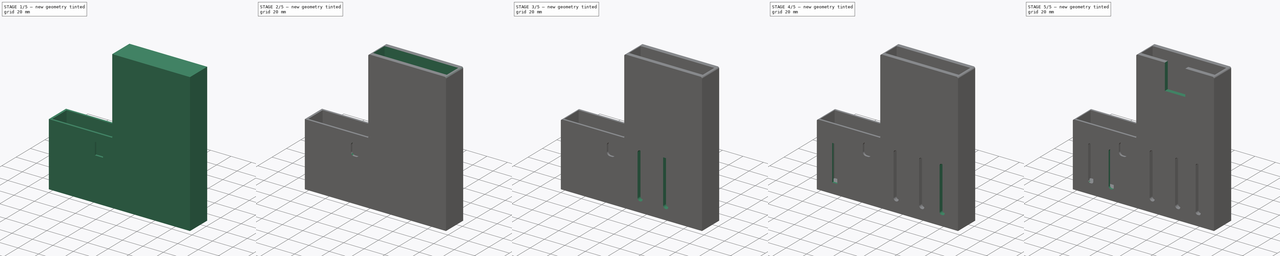
[diagram: build sequence overview — one tinted view per stage of 5, left to right]
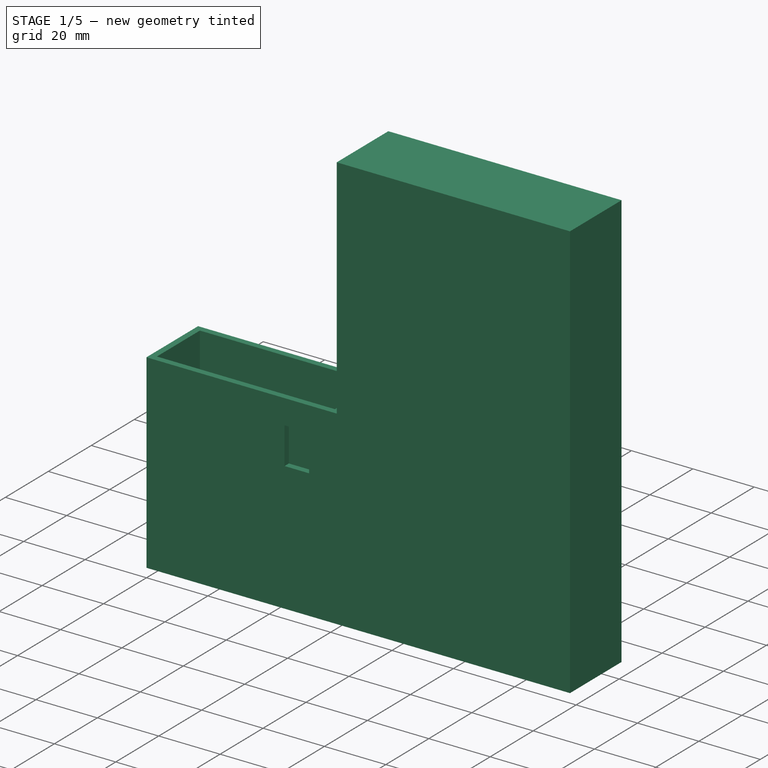
[diagram: stage 1 of 5 — iso view after this stage's code; geometry added in this stage tinted green]
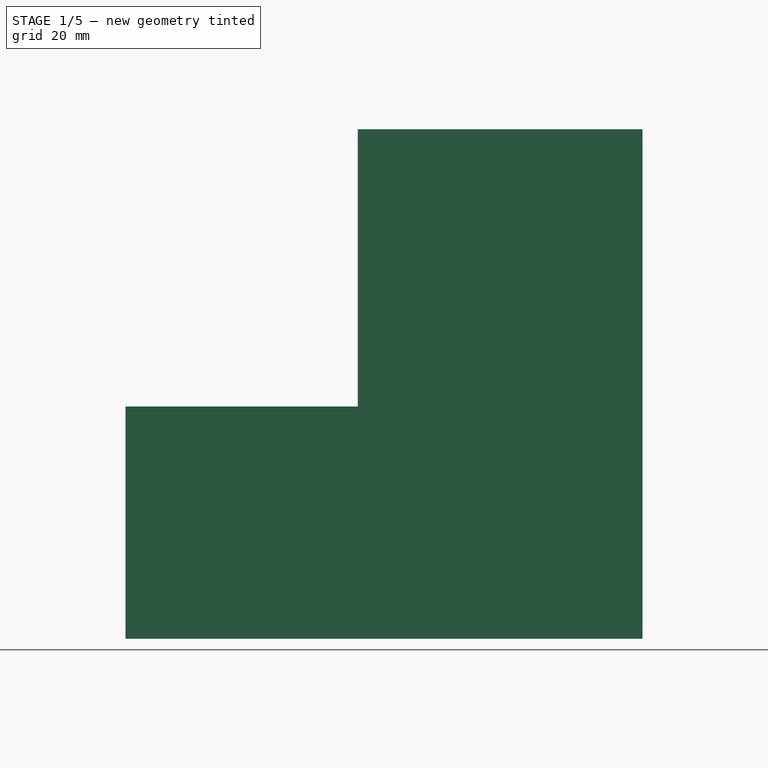
[diagram: stage 1 of 5 — front view after this stage's code; geometry added in this stage tinted green]
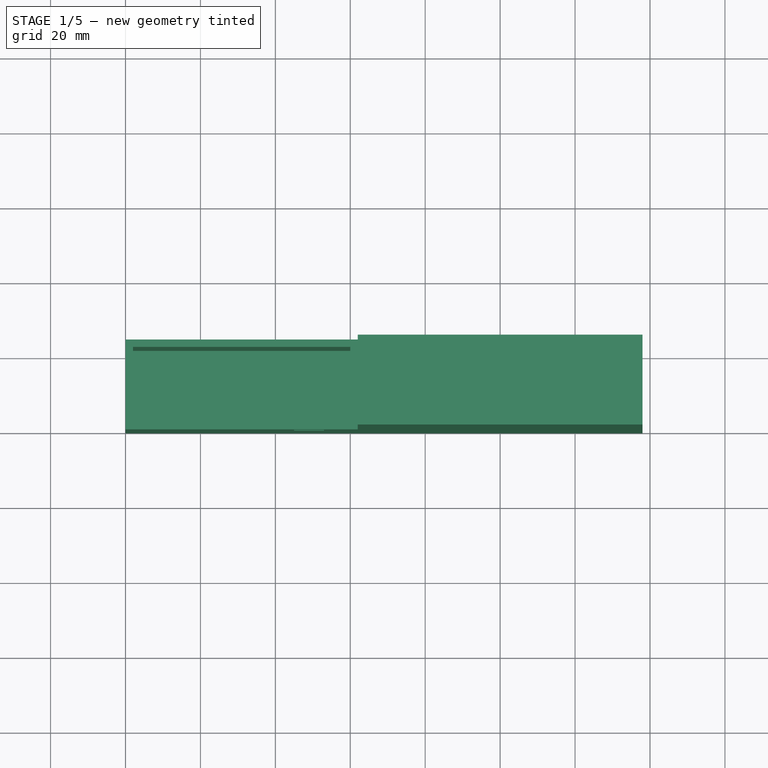
[diagram: stage 1 of 5 — top view after this stage's code; geometry added in this stage tinted green]
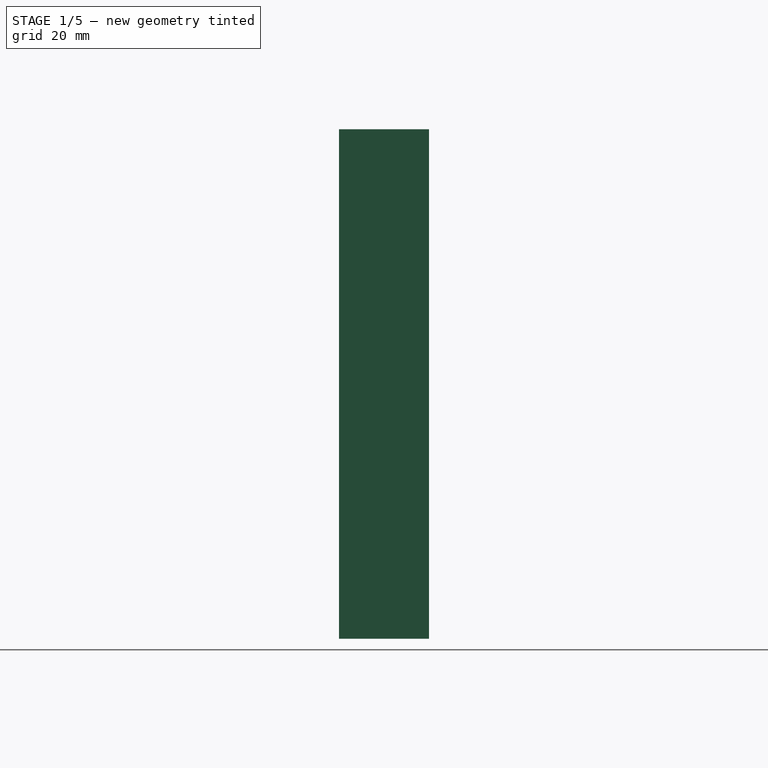
[diagram: stage 1 of 5 — right view after this stage's code; geometry added in this stage tinted green]
FCSTD DOCUMENT  (FreeCAD 0.19R24267 +148 (Git))
Label: V5
License: All rights reserved
LicenseURL: http://en.wikipedia.org/wiki/All_rights_reserved
objects: PartDesign::Fillet×20, Sketcher::SketchObject×10, PartDesign::Pocket×9, PartDesign::Pad×5, PartDesign::Body×1
note: 79 computed .brp shape members not serialized (recipe doc carries the construction recipe); baked Part::Feature solids carry a one-line shape summary decoded from their .brp

FEATURE [Sketcher::SketchObject] Sketch
  FullyConstrained = true
  MapMode = 5
  Support = -> [XY_Plane]
  sketch-geometry (4):
    g0: LineSegment StartX=0 StartY=0 StartZ=0 EndX=62 EndY=0 EndZ=0
    g1: LineSegment StartX=62 StartY=0 StartZ=0 EndX=62 EndY=24 EndZ=0
    g2: LineSegment StartX=62 StartY=24 StartZ=0 EndX=0 EndY=24 EndZ=0
    g3: LineSegment StartX=0 StartY=24 StartZ=0 EndX=0 EndY=0 EndZ=0
  constraints (11):
    c: Coincident(g0,g1)
    c: Coincident(g1,g2)
    c: Coincident(g2,g3)
    c: Coincident(g3,g0)
    c: Horizontal(g0)
    c: Horizontal(g2)
    c: Vertical(g1)
    c: Vertical(g3)
    c: Coincident(g0,g-1)
    c: Distance(g1) = 24
    c: Distance(g2) = 62
FEATURE [PartDesign::Pad] Pad
  Direction = (1,1,1)
  Length = 62
  Length2 = 100
  Profile = -> Sketch
  Type = 0
FEATURE [Sketcher::SketchObject] Sketch001
  FullyConstrained = true
  MapMode = 5
  Placement = pos=(0,0,62) rot=(0,0,1;0rad)
  Support = -> [Pad]
  sketch-geometry (4):
    g0: LineSegment StartX=2 StartY=2 StartZ=0 EndX=60 EndY=2 EndZ=0
    g1: LineSegment StartX=60 StartY=2 StartZ=0 EndX=60 EndY=22 EndZ=0
    g2: LineSegment StartX=60 StartY=22 StartZ=0 EndX=2 EndY=22 EndZ=0
    g3: LineSegment StartX=2 StartY=22 StartZ=0 EndX=2 EndY=2 EndZ=0
  constraints (12):
    c: Coincident(g0,g1)
    c: Coincident(g1,g2)
    c: Coincident(g2,g3)
    c: Coincident(g3,g0)
    c: Horizontal(g0)
    c: Horizontal(g2)
    c: Vertical(g1)
    c: Vertical(g3)
    c: Distance(g2) = 58
    c: Distance(g1) = 20
    c: Distance(g-1,g3) = 2
    c: Distance(g-1,g0) = 2
FEATURE [PartDesign::Pocket] Pocket
  BaseFeature = -> Pad
  Length = 60
  Length2 = 100
  Profile = -> Sketch001
  Type = 0
FEATURE [Sketcher::SketchObject] Sketch002
  FullyConstrained = true
  MapMode = 5
  Placement = pos=(0,0,0) rot=(1,0,0;1.5708rad)
  Support = -> [Pocket]
  sketch-geometry (4):
    g0: LineSegment StartX=45 StartY=54 StartZ=0 EndX=53 EndY=54 EndZ=0
    g1: LineSegment StartX=53 StartY=54 StartZ=0 EndX=53 EndY=42 EndZ=0
    g2: LineSegment StartX=53 StartY=42 StartZ=0 EndX=45 EndY=42 EndZ=0
    g3: LineSegment StartX=45 StartY=42 StartZ=0 EndX=45 EndY=54 EndZ=0
  constraints (12):
    c: Coincident(g0,g1)
    c: Coincident(g1,g2)
    c: Coincident(g2,g3)
    c: Coincident(g3,g0)
    c: Horizontal(g0)
    c: Horizontal(g2)
    c: Vertical(g1)
    c: Vertical(g3)
    c: Distance(g1) = 12
    c: Distance(g0) = 8
    c: DistanceX(g-1,g2) = 45
    c: DistanceY(g-1,g2) = 42
FEATURE [PartDesign::Pocket] Pocket001
  BaseFeature = -> Pocket
  Length = 2
  Length2 = 100
  Profile = -> Sketch002
  Type = 0
FEATURE [PartDesign::Pad] Pad001
  BaseFeature = -> Pocket001
  Direction = (1,1,1)
  Length = 74
  Length2 = 100
  Profile = -> Pocket001 [Face5]
  Type = 0
FEATURE [PartDesign::Pad] Pad002
  BaseFeature = -> Pad001
  Direction = (1,1,1)
  Length = 74
  Length2 = 100
  Profile = -> Pad001 [Face12]
  Type = 0
FEATURE [Sketcher::SketchObject] Sketch003
  FullyConstrained = true
  MapMode = 5
  Placement = pos=(0,0,136) rot=(0,0,1;0rad)
  Support = -> [Pad002]
  sketch-geometry (4):
    g0: LineSegment StartX=64 StartY=20 StartZ=0 EndX=136 EndY=20 EndZ=0
    g1: LineSegment StartX=136 StartY=20 StartZ=0 EndX=136 EndY=4 EndZ=0
    g2: LineSegment StartX=136 StartY=4 StartZ=0 EndX=64 EndY=4 EndZ=0
    g3: LineSegment StartX=64 StartY=4 StartZ=0 EndX=64 EndY=20 EndZ=0
  constraints (12):
    c: Coincident(g0,g1)
    c: Coincident(g1,g2)
    c: Coincident(g2,g3)
    c: Coincident(g3,g0)
    c: Horizontal(g0)
    c: Horizontal(g2)
    c: Vertical(g1)
    c: Vertical(g3)
    c: DistanceX(g0,g0) = 72
    c: DistanceY(g3,g3) = 16
    c: DistanceY(g-1,g2) = 4
    c: DistanceX(g-1,g2) = 64
FEATURE [PartDesign::Pad] Pad003
  BaseFeature = -> Pad002
  Direction = (1,1,1)
  Length = 2
  Length2 = 100
  Profile = -> Pad002 [Face18]
  Type = 0
FEATURE [PartDesign::Pad] Pad004
  BaseFeature = -> Pad003
  Direction = (1,1,1)
  Length = 2
  Length2 = 100
  Profile = -> Pad003 [Face24]
  Type = 0
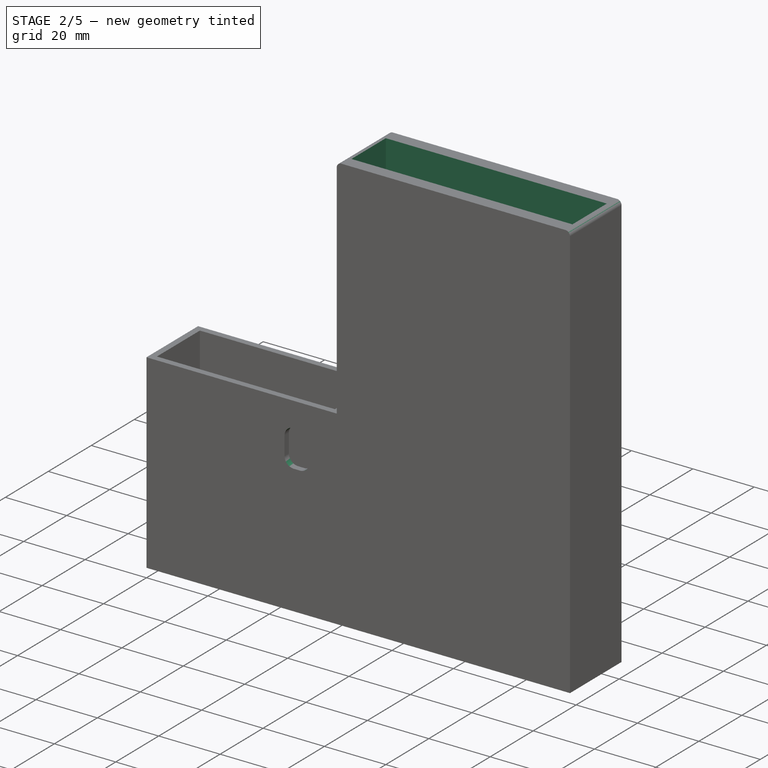
[diagram: stage 2 of 5 — iso view after this stage's code; geometry added in this stage tinted green]
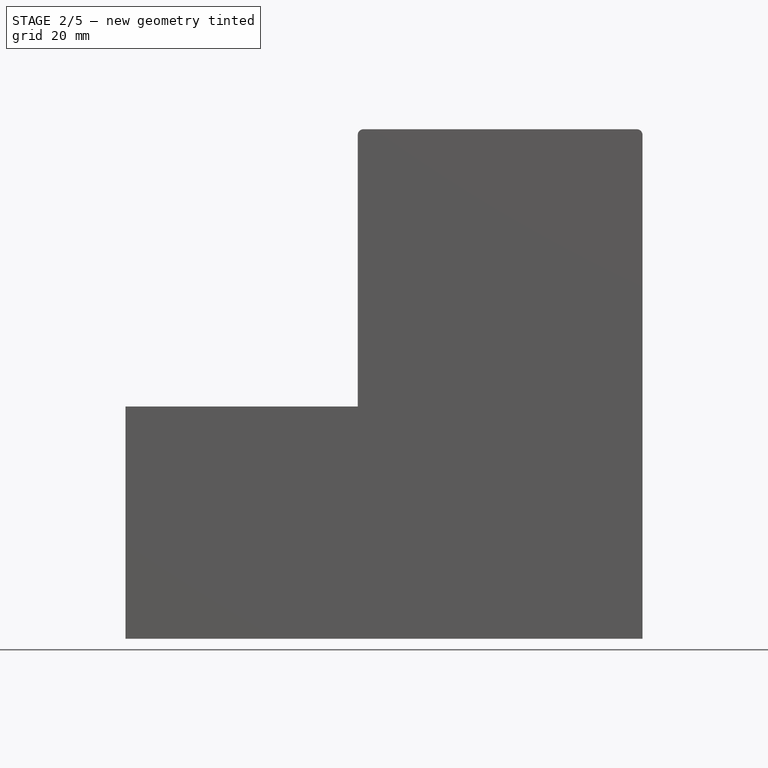
[diagram: stage 2 of 5 — front view after this stage's code; geometry added in this stage tinted green]
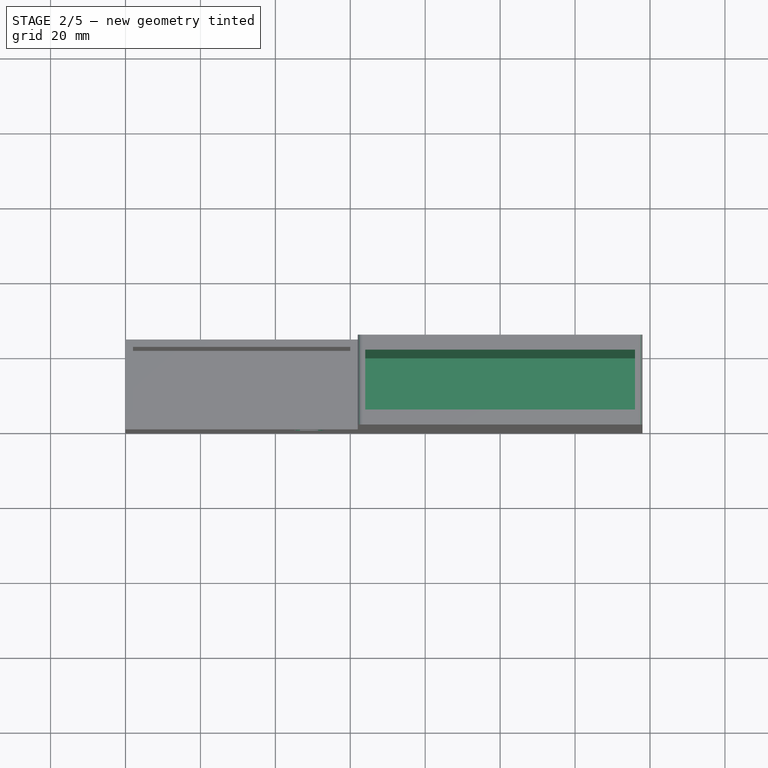
[diagram: stage 2 of 5 — top view after this stage's code; geometry added in this stage tinted green]
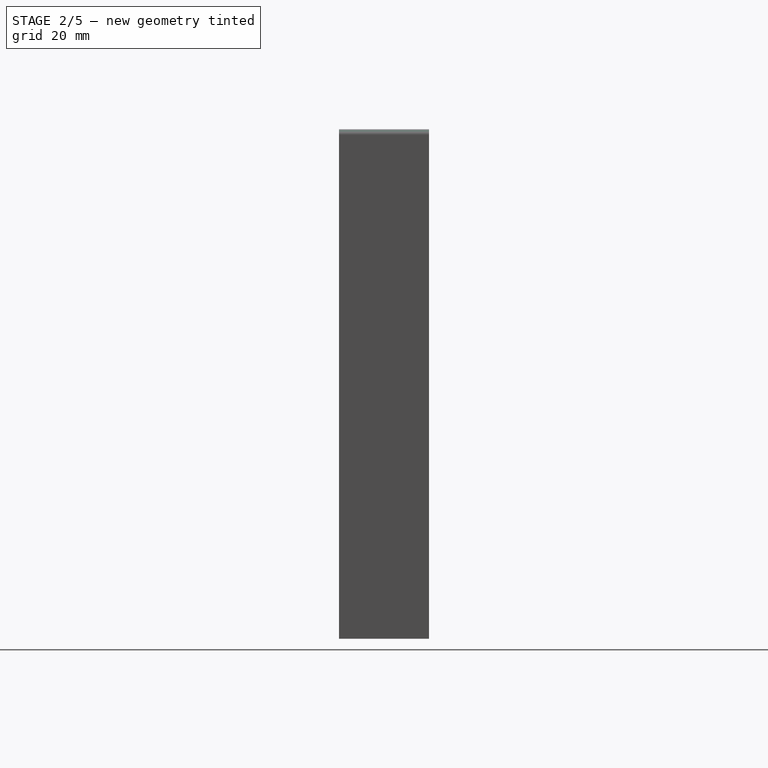
[diagram: stage 2 of 5 — right view after this stage's code; geometry added in this stage tinted green]
FEATURE [PartDesign::Pocket] Pocket002
  BaseFeature = -> Pad004
  Length = 135
  Length2 = 100
  Profile = -> Sketch003
  Type = 0
FEATURE [PartDesign::Fillet] Fillet
  Base = -> Pocket002 [Edge28]
  BaseFeature = -> Pocket002
  Radius = 3
  SupportTransform = false
FEATURE [PartDesign::Fillet] Fillet001
  Base = -> Fillet [Edge11]
  BaseFeature = -> Fillet
  Radius = 3
  SupportTransform = false
FEATURE [PartDesign::Fillet] Fillet002
  Base = -> Fillet001 [Edge18]
  BaseFeature = -> Fillet001
  Radius = 3
  SupportTransform = false
FEATURE [PartDesign::Fillet] Fillet003
  Base = -> Fillet002 [Edge19]
  BaseFeature = -> Fillet002
  Radius = 3
  SupportTransform = false
FEATURE [PartDesign::Fillet] Fillet004
  Base = -> Fillet003 [Edge51]
  BaseFeature = -> Fillet003
  Radius = 1.5
  SupportTransform = false
FEATURE [PartDesign::Fillet] Fillet005
  Base = -> Fillet004 [Edge72]
  BaseFeature = -> Fillet004
  Radius = 1.5
  SupportTransform = false
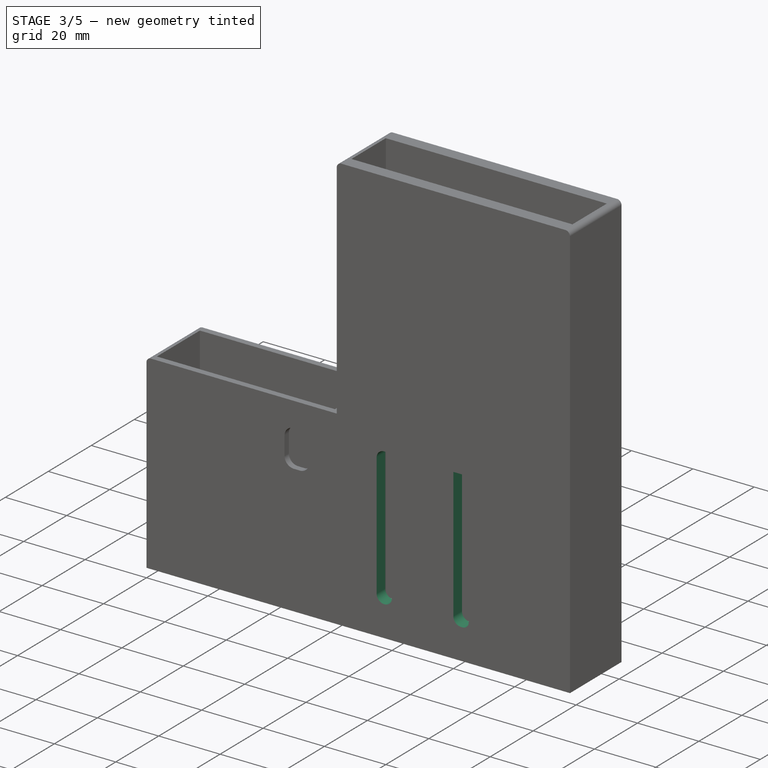
[diagram: stage 3 of 5 — iso view after this stage's code; geometry added in this stage tinted green]
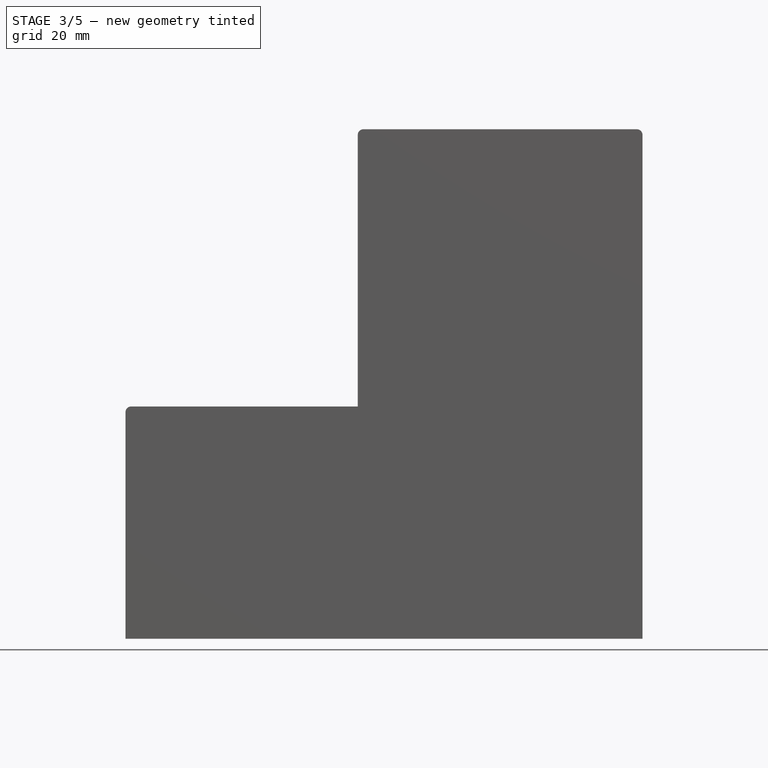
[diagram: stage 3 of 5 — front view after this stage's code; geometry added in this stage tinted green]
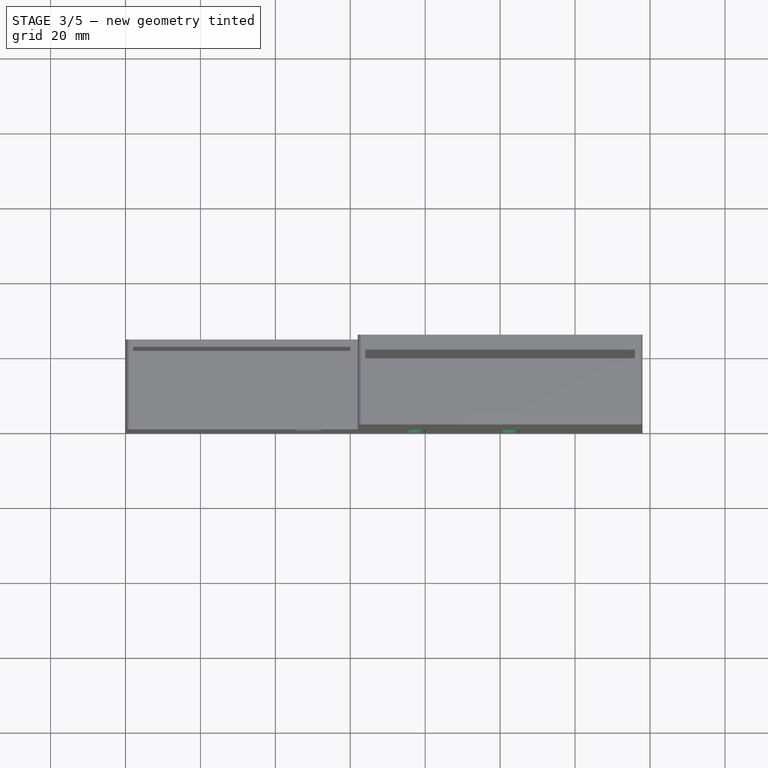
[diagram: stage 3 of 5 — top view after this stage's code; geometry added in this stage tinted green]
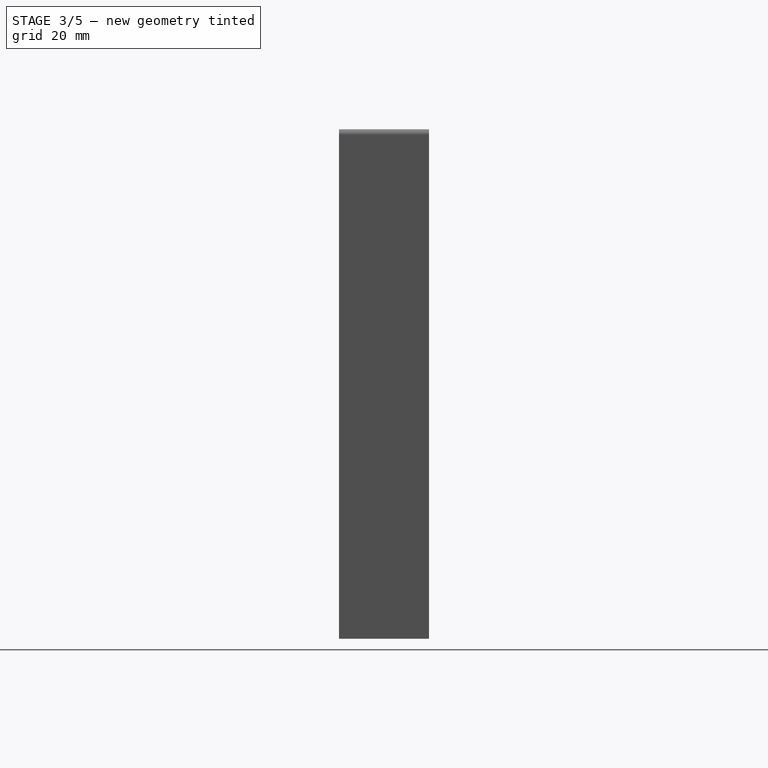
[diagram: stage 3 of 5 — right view after this stage's code; geometry added in this stage tinted green]
FEATURE [PartDesign::Fillet] Fillet006
  Base = -> Fillet005 [Edge50]
  BaseFeature = -> Fillet005
  Radius = 1.5
  SupportTransform = false
FEATURE [Sketcher::SketchObject] Sketch004
  FullyConstrained = true
  MapMode = 5
  Placement = pos=(0,0,0) rot=(1,0,0;1.5708rad)
  Support = -> [XZ_Plane]
  sketch-geometry (4):
    g0: LineSegment StartX=75 StartY=10 StartZ=0 EndX=80 EndY=10 EndZ=0
    g1: LineSegment StartX=80 StartY=10 StartZ=0 EndX=80 EndY=55 EndZ=0
    g2: LineSegment StartX=80 StartY=55 StartZ=0 EndX=75 EndY=55 EndZ=0
    g3: LineSegment StartX=75 StartY=55 StartZ=0 EndX=75 EndY=10 EndZ=0
  constraints (12):
    c: Coincident(g0,g1)
    c: Coincident(g1,g2)
    c: Coincident(g2,g3)
    c: Coincident(g3,g0)
    c: Horizontal(g0)
    c: Horizontal(g2)
    c: Vertical(g1)
    c: Vertical(g3)
    c: Distance(g1) = 45
    c: Distance(g2) = 5
    c: Distance(g-1,g0) = 10
    c: Distance(g-1,g3) = 75
FEATURE [PartDesign::Pocket] Pocket003
  BaseFeature = -> Fillet006
  Length = 4
  Length2 = 100
  Profile = -> Sketch004
  Type = 0
FEATURE [Sketcher::SketchObject] Sketch005
  FullyConstrained = true
  MapMode = 5
  Placement = pos=(0,0,0) rot=(1,0,0;1.5708rad)
  Support = -> [XZ_Plane]
  sketch-geometry (4):
    g0: LineSegment StartX=100 StartY=10 StartZ=0 EndX=105 EndY=10 EndZ=0
    g1: LineSegment StartX=105 StartY=10 StartZ=0 EndX=105 EndY=55 EndZ=0
    g2: LineSegment StartX=105 StartY=55 StartZ=0 EndX=100 EndY=55 EndZ=0
    g3: LineSegment StartX=100 StartY=55 StartZ=0 EndX=100 EndY=10 EndZ=0
  constraints (12):
    c: Coincident(g0,g1)
    c: Coincident(g1,g2)
    c: Coincident(g2,g3)
    c: Coincident(g3,g0)
    c: Horizontal(g0)
    c: Horizontal(g2)
    c: Vertical(g1)
    c: Vertical(g3)
    c: Distance(g1) = 45
    c: Distance(g2) = 5
    c: Distance(g-1,g0) = 10
    c: Distance(g-1,g3) = 100
FEATURE [PartDesign::Pocket] Pocket004
  BaseFeature = -> Pocket003
  Length = 4
  Length2 = 100
  Profile = -> Sketch005
  Type = 0
FEATURE [PartDesign::Fillet] Fillet008
  Base = -> Pocket004 [Edge39]
  BaseFeature = -> Pocket004
  Radius = 2.5
  SupportTransform = false
FEATURE [PartDesign::Fillet] Fillet009
  Base = -> Fillet008 [Edge19]
  BaseFeature = -> Fillet008
  Radius = 2.5
  SupportTransform = false
FEATURE [PartDesign::Fillet] Fillet010
  Base = -> Fillet009 [Edge26]
  BaseFeature = -> Fillet009
  Radius = 2.5
  SupportTransform = false
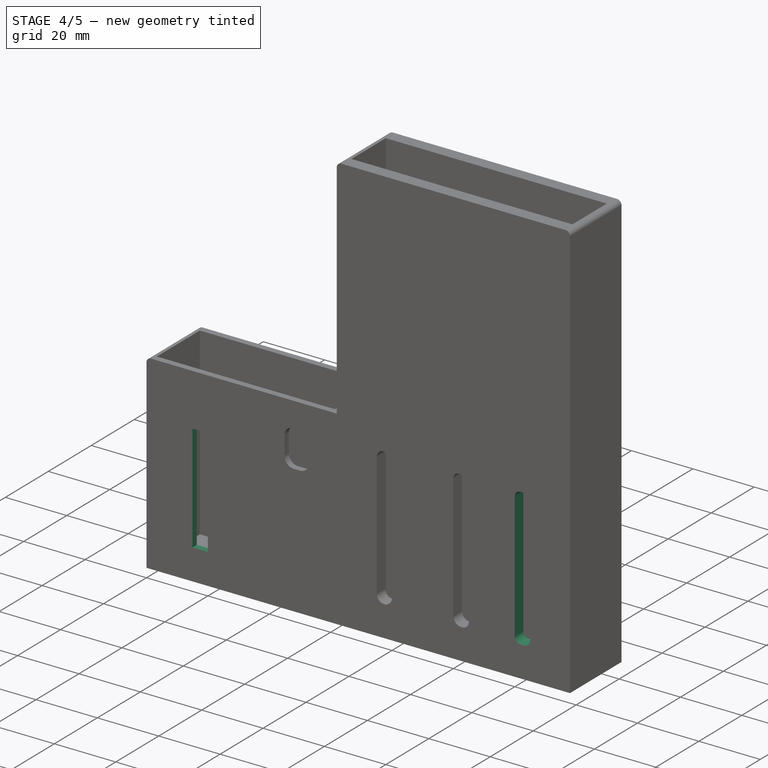
[diagram: stage 4 of 5 — iso view after this stage's code; geometry added in this stage tinted green]
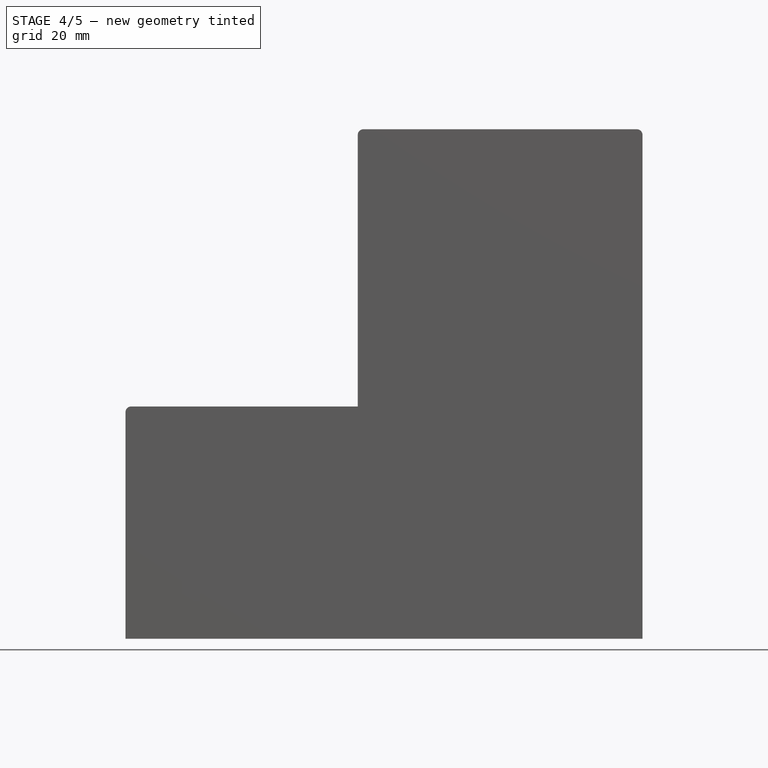
[diagram: stage 4 of 5 — front view after this stage's code; geometry added in this stage tinted green]
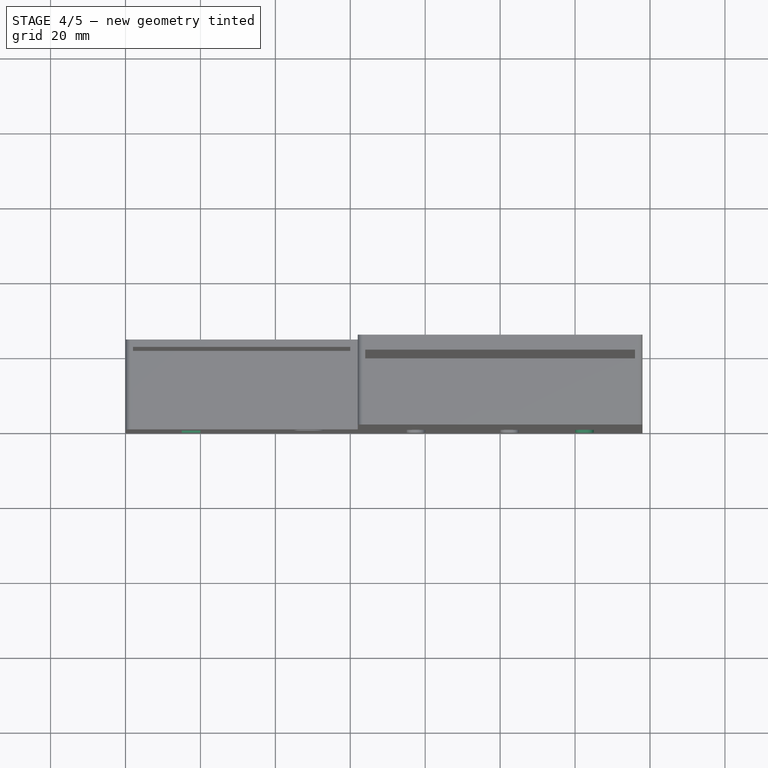
[diagram: stage 4 of 5 — top view after this stage's code; geometry added in this stage tinted green]
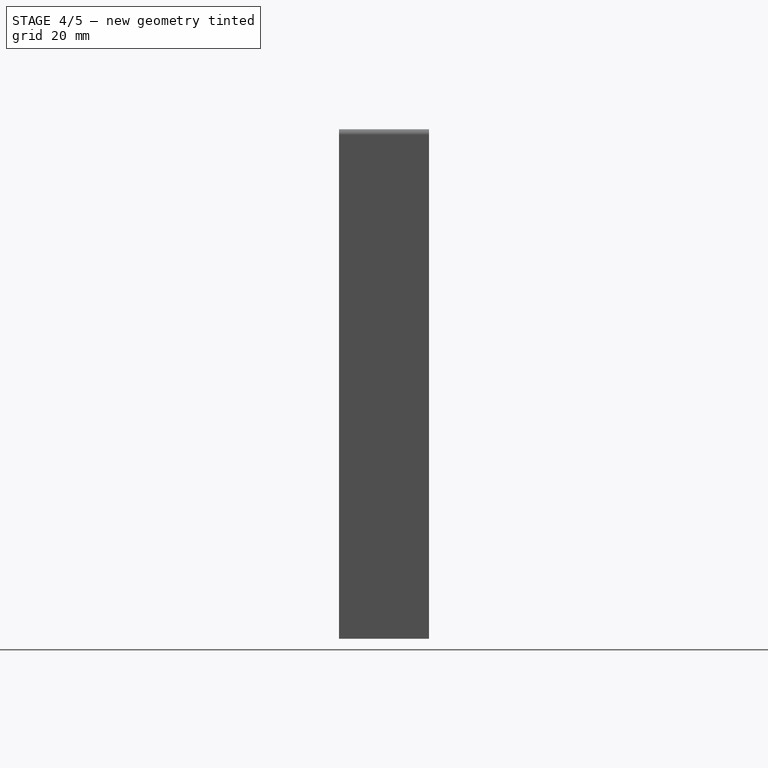
[diagram: stage 4 of 5 — right view after this stage's code; geometry added in this stage tinted green]
FEATURE [PartDesign::Fillet] Fillet011
  Base = -> Fillet010 [Edge27]
  BaseFeature = -> Fillet010
  Radius = 2
  SupportTransform = false
FEATURE [Sketcher::SketchObject] Sketch006
  FullyConstrained = true
  MapMode = 5
  Placement = pos=(0,0,0) rot=(1,0,0;1.5708rad)
  Support = -> [XZ_Plane]
  sketch-geometry (4):
    g0: LineSegment StartX=120 StartY=10 StartZ=0 EndX=125 EndY=10 EndZ=0
    g1: LineSegment StartX=125 StartY=10 StartZ=0 EndX=125 EndY=55 EndZ=0
    g2: LineSegment StartX=125 StartY=55 StartZ=0 EndX=120 EndY=55 EndZ=0
    g3: LineSegment StartX=120 StartY=55 StartZ=0 EndX=120 EndY=10 EndZ=0
  constraints (12):
    c: Coincident(g0,g1)
    c: Coincident(g1,g2)
    c: Coincident(g2,g3)
    c: Coincident(g3,g0)
    c: Horizontal(g0)
    c: Horizontal(g2)
    c: Vertical(g1)
    c: Vertical(g3)
    c: Distance(g1) = 45
    c: Distance(g0) = 5
    c: Distance(g-1,g0) = 10
    c: Distance(g-1,g3) = 120
FEATURE [PartDesign::Pocket] Pocket005
  BaseFeature = -> Fillet011
  Length = 4
  Length2 = 100
  Profile = -> Sketch006
  Type = 0
FEATURE [PartDesign::Fillet] Fillet012
  Base = -> Pocket005 [Edge47]
  BaseFeature = -> Pocket005
  Radius = 2
  SupportTransform = false
FEATURE [PartDesign::Fillet] Fillet013
  Base = -> Fillet012 [Edge27]
  BaseFeature = -> Fillet012
  Radius = 2
  SupportTransform = false
FEATURE [PartDesign::Fillet] Fillet014
  Base = -> Fillet013 [Edge36]
  BaseFeature = -> Fillet013
  Radius = 2
  SupportTransform = false
FEATURE [PartDesign::Fillet] Fillet015
  Base = -> Fillet014 [Edge35]
  BaseFeature = -> Fillet014
  Radius = 2
  SupportTransform = false
FEATURE [Sketcher::SketchObject] Sketch007
  FullyConstrained = true
  MapMode = 5
  Placement = pos=(0,0,0) rot=(1,0,0;1.5708rad)
  Support = -> [XZ_Plane]
  sketch-geometry (4):
    g0: LineSegment StartX=15 StartY=10 StartZ=0 EndX=20 EndY=10 EndZ=0
    g1: LineSegment StartX=20 StartY=10 StartZ=0 EndX=20 EndY=45 EndZ=0
    g2: LineSegment StartX=20 StartY=45 StartZ=0 EndX=15 EndY=45 EndZ=0
    g3: LineSegment StartX=15 StartY=45 StartZ=0 EndX=15 EndY=10 EndZ=0
  constraints (12):
    c: Coincident(g0,g1)
    c: Coincident(g1,g2)
    c: Coincident(g2,g3)
    c: Coincident(g3,g0)
    c: Horizontal(g0)
    c: Horizontal(g2)
    c: Vertical(g1)
    c: Vertical(g3)
    c: Distance(g0) = 5
    c: Distance(g1) = 35
    c: Distance(g-1,g0) = 10
    c: Distance(g-1,g3) = 15
FEATURE [PartDesign::Pocket] Pocket006
  BaseFeature = -> Fillet015
  Length = 2
  Length2 = 100
  Profile = -> Sketch007
  Type = 0
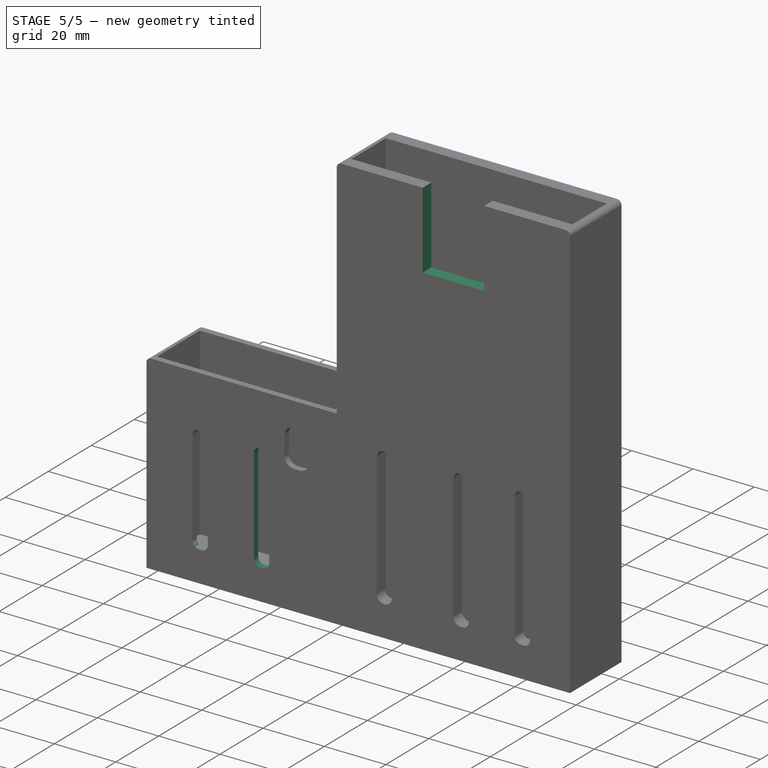
[diagram: stage 5 of 5 — iso view after this stage's code; geometry added in this stage tinted green]
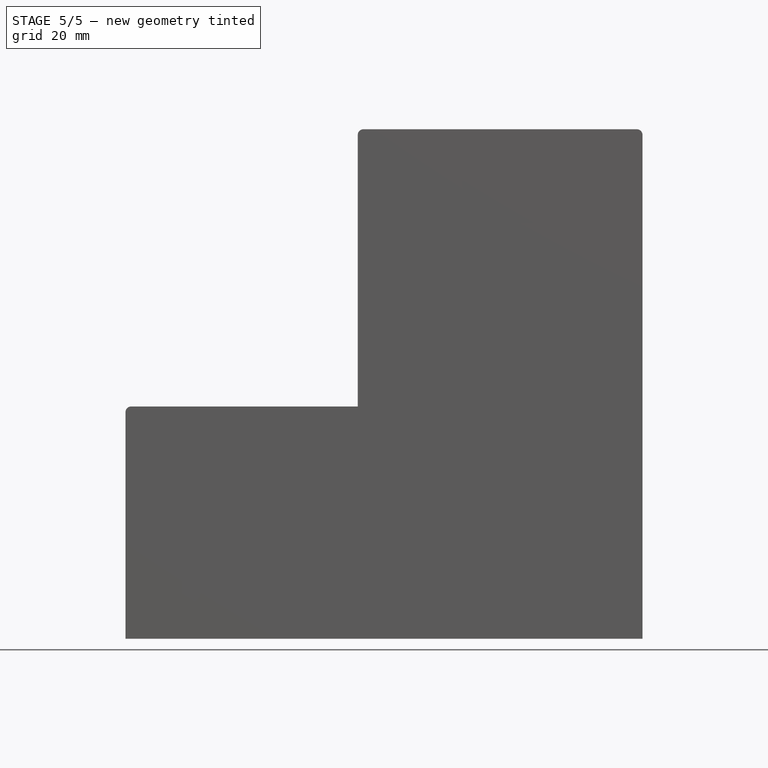
[diagram: stage 5 of 5 — front view after this stage's code; geometry added in this stage tinted green]
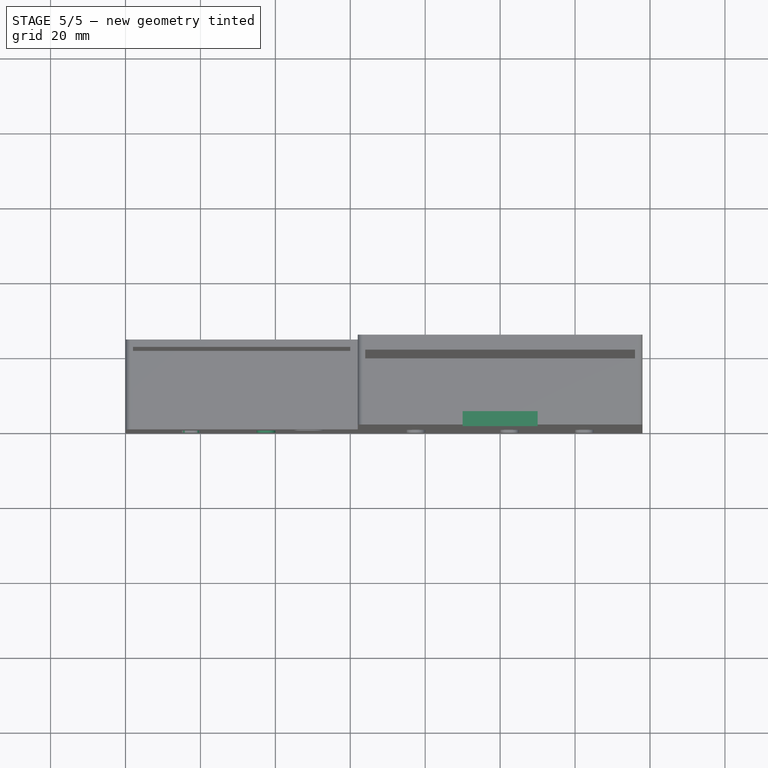
[diagram: stage 5 of 5 — top view after this stage's code; geometry added in this stage tinted green]
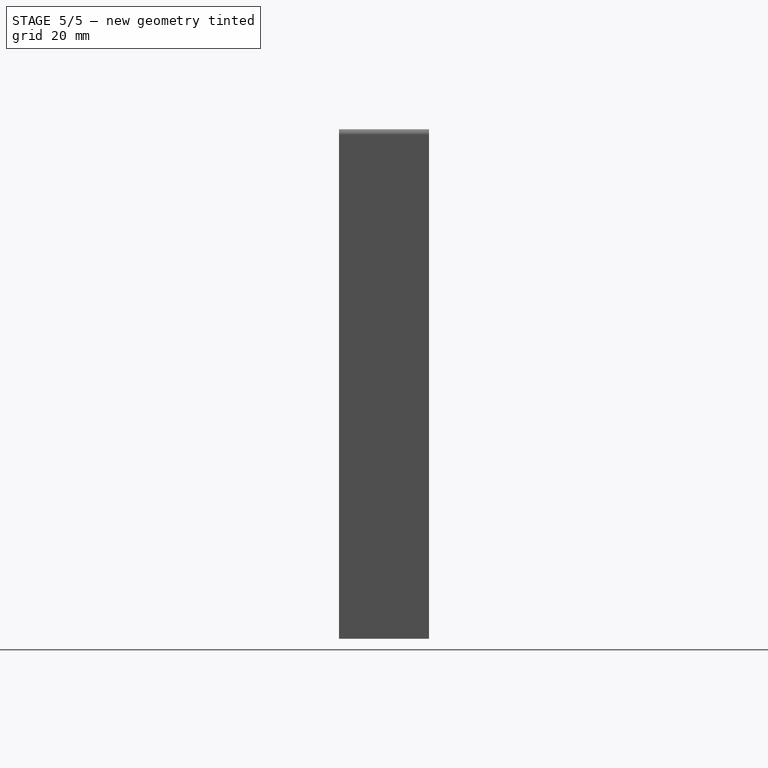
[diagram: stage 5 of 5 — right view after this stage's code; geometry added in this stage tinted green]
FEATURE [PartDesign::Fillet] Fillet016
  Base = -> Pocket006 [Edge146]
  BaseFeature = -> Pocket006
  Radius = 2
  SupportTransform = false
FEATURE [PartDesign::Fillet] Fillet017
  Base = -> Fillet016 [Edge26]
  BaseFeature = -> Fillet016
  Radius = 2
  SupportTransform = false
FEATURE [PartDesign::Fillet] Fillet018
  Base = -> Fillet017 [Edge27]
  BaseFeature = -> Fillet017
  Radius = 2
  SupportTransform = false
FEATURE [PartDesign::Fillet] Fillet019
  Base = -> Fillet018 [Edge28]
  BaseFeature = -> Fillet018
  Radius = 2
  SupportTransform = false
FEATURE [Sketcher::SketchObject] Sketch008
  FullyConstrained = true
  MapMode = 5
  Placement = pos=(0,0,0) rot=(1,0,0;1.5708rad)
  Support = -> [XZ_Plane]
  sketch-geometry (4):
    g0: LineSegment StartX=35 StartY=10 StartZ=0 EndX=40 EndY=10 EndZ=0
    g1: LineSegment StartX=40 StartY=10 StartZ=0 EndX=40 EndY=45 EndZ=0
    g2: LineSegment StartX=40 StartY=45 StartZ=0 EndX=35 EndY=45 EndZ=0
    g3: LineSegment StartX=35 StartY=45 StartZ=0 EndX=35 EndY=10 EndZ=0
  constraints (12):
    c: Coincident(g0,g1)
    c: Coincident(g1,g2)
    c: Coincident(g2,g3)
    c: Coincident(g3,g0)
    c: Horizontal(g0)
    c: Horizontal(g2)
    c: Vertical(g1)
    c: Vertical(g3)
    c: Distance(g1) = 35
    c: Distance(g0) = 5
    c: Distance(g-1,g0) = 10
    c: Distance(g-1,g3) = 35
FEATURE [PartDesign::Pocket] Pocket007
  BaseFeature = -> Fillet019
  Length = 2
  Length2 = 100
  Profile = -> Sketch008
  Type = 0
FEATURE [PartDesign::Fillet] Fillet020
  Base = -> Pocket007 [Edge103,Edge99,Edge101,Edge98]
  BaseFeature = -> Pocket007
  Radius = 2
  SupportTransform = false
FEATURE [Sketcher::SketchObject] Sketch009
  FullyConstrained = true
  MapMode = 5
  Placement = pos=(0,0,0) rot=(1,0,0;1.5708rad)
  Support = -> [XZ_Plane]
  sketch-geometry (4):
    g0: LineSegment StartX=90 StartY=111 StartZ=0 EndX=110 EndY=111 EndZ=0
    g1: LineSegment StartX=110 StartY=111 StartZ=0 EndX=110 EndY=136 EndZ=0
    g2: LineSegment StartX=110 StartY=136 StartZ=0 EndX=90 EndY=136 EndZ=0
    g3: LineSegment StartX=90 StartY=136 StartZ=0 EndX=90 EndY=111 EndZ=0
  constraints (12):
    c: Coincident(g0,g1)
    c: Coincident(g1,g2)
    c: Coincident(g2,g3)
    c: Coincident(g3,g0)
    c: Horizontal(g0)
    c: Horizontal(g2)
    c: Vertical(g1)
    c: Vertical(g3)
    c: Distance(g1) = 25
    c: Distance(g0) = 20
    c: Distance(g-1,g0) = 111
    c: Distance(g-1,g3) = 90
FEATURE [PartDesign::Pocket] Pocket008
  BaseFeature = -> Fillet020
  Length = 4
  Length2 = 100
  Profile = -> Sketch009
  Type = 0
FEATURE [PartDesign::Body] Body
  Group = -> [Sketch,Pad,Sketch001,Pocket,Sketch002,Pocket001,Pad001,Pad002,Sketch003,Pad003,Pad004,Pocket002,Fillet,Fillet001,Fillet002,Fillet003,Fillet004,Fillet005,Fillet006,Sketch004,Pocket003,Sketch005,Pocket004,Fillet008,Fillet009,Fillet010,Fillet011,Sketch006,Pocket005,Fillet012,Fillet013,Fillet014,Fillet015,Sketch007,Pocket006,Fillet016,Fillet017,Fillet018,Fillet019,Sketch008,Pocket007,Fillet020,+2 more]
  Origin = -> Origin
  Tip = -> Pocket008
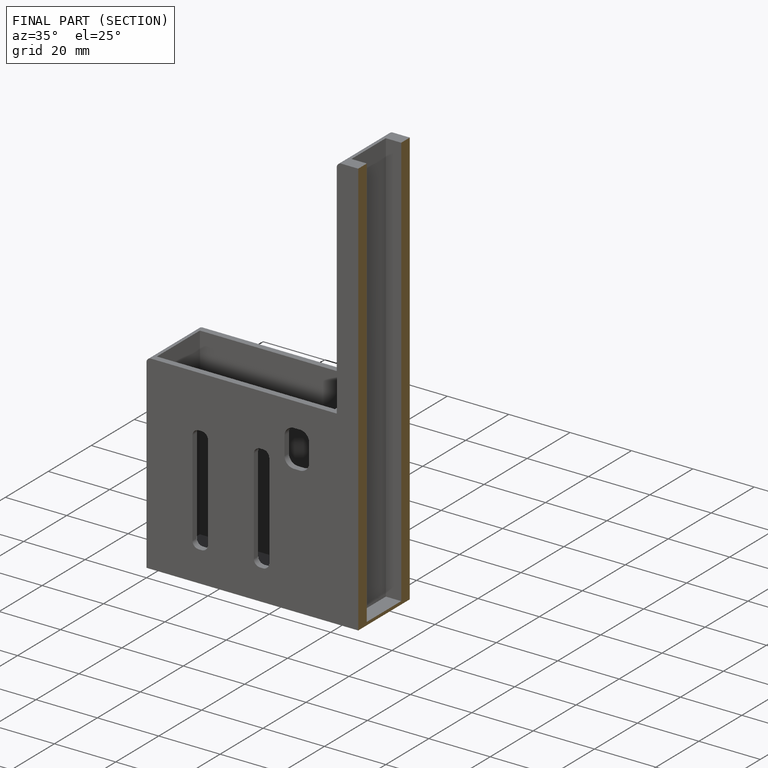
[diagram: finished part — half-section view (interior)]
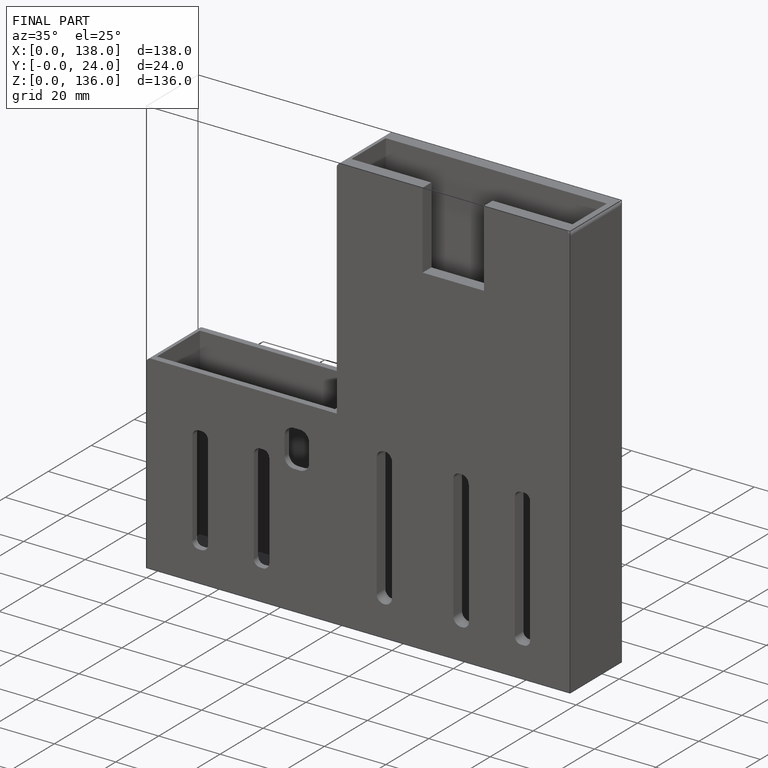
[diagram: finished part — iso view with bounding-box wireframe]
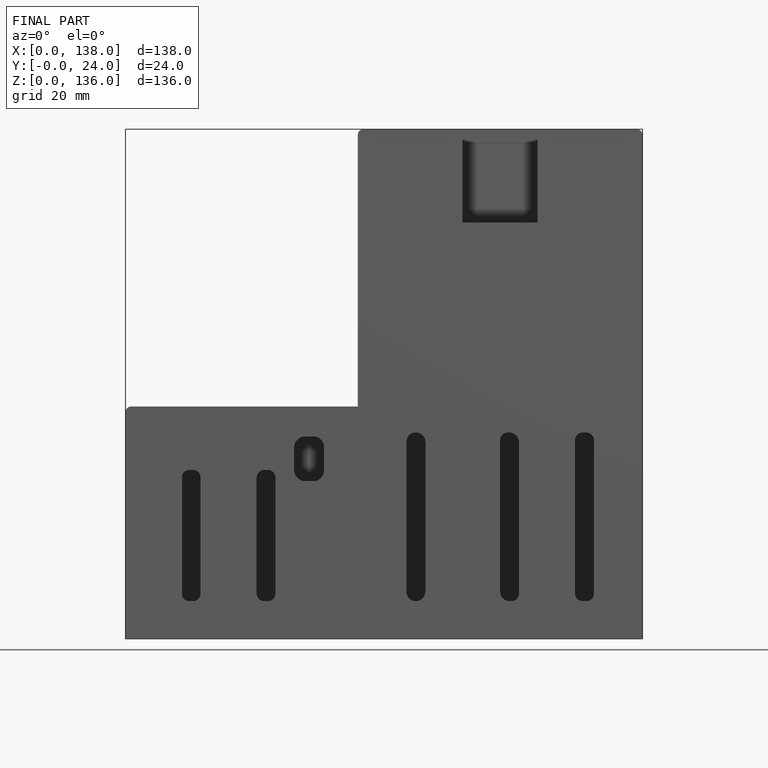
[diagram: finished part — front view with bounding-box wireframe]
